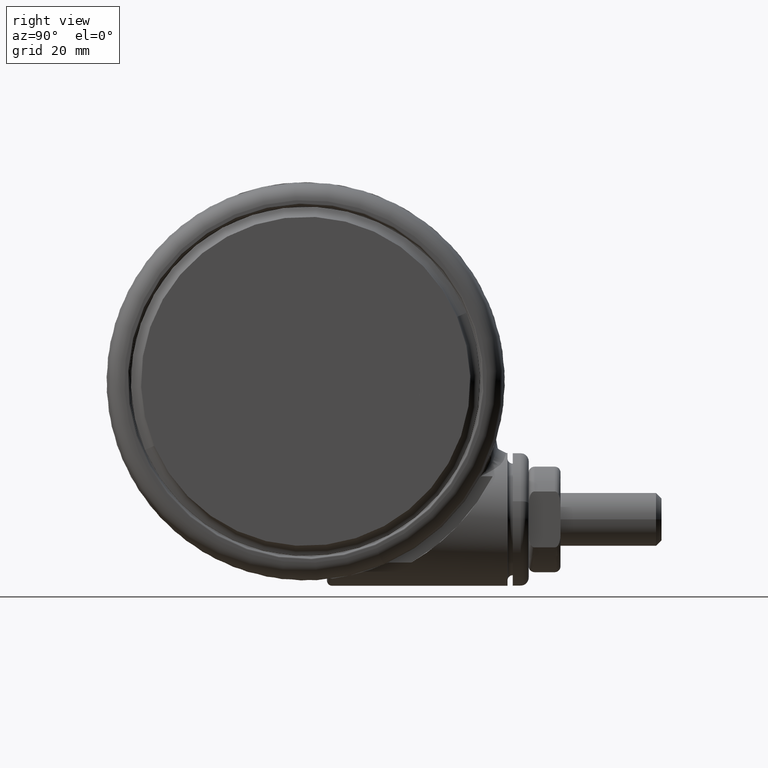
[diagram: clean part render]
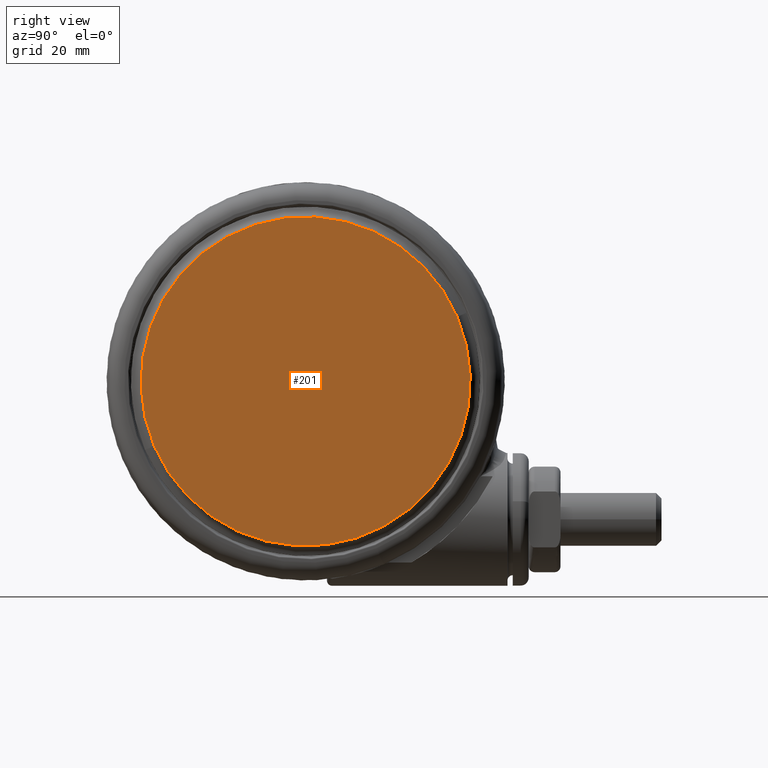
[diagram: same view with one face highlighted and labeled with its STEP entity id]
A machine part, right view. The second image highlights one B-rep face of the part: STEP entity #201.
In plain terms, the highlighted planar face has unit normal (-1, 0, 0).
Its self-contained STEP definition (entity closure, byte-faithful):
#201 = ADVANCED_FACE ( 'NONE', ( #32467 ), #52228, .F. ) ;
#1480 = CIRCLE ( 'NONE', #42390, 31.00000000000000000 ) ;
#2048 = EDGE_CURVE ( 'NONE', #19672, #41704, #1480, .T. ) ;
#10494 = EDGE_CURVE ( 'NONE', #41704, #19672, #26049, .T. ) ;
#11190 = AXIS2_PLACEMENT_3D ( 'NONE', #49265, #52463, #53049 ) ;
#12112 = ORIENTED_EDGE ( 'NONE', *, *, #2048, .T. ) ;
#12439 = EDGE_LOOP ( 'NONE', ( #12112, #20717 ) ) ;
#19672 = VERTEX_POINT ( 'NONE', #21919 ) ;
#20717 = ORIENTED_EDGE ( 'NONE', *, *, #10494, .T. ) ;
#21919 = CARTESIAN_POINT ( 'NONE',  ( 31.00000000000000000, 0.0000000000000000000, -1.301042606982605300E-015 ) ) ;
#22043 = CARTESIAN_POINT ( 'NONE',  ( 0.0000000000000000000, 0.0000000000000000000, -1.301042606982605300E-015 ) ) ;
#26049 = CIRCLE ( 'NONE', #51027, 31.00000000000000000 ) ;
#26494 = DIRECTION ( 'NONE',  ( 1.000000000000000000, 0.0000000000000000000, 0.0000000000000000000 ) ) ;
#29312 = DIRECTION ( 'NONE',  ( 0.0000000000000000000, 0.0000000000000000000, 1.000000000000000000 ) ) ;
#29324 = DIRECTION ( 'NONE',  ( 1.000000000000000000, 0.0000000000000000000, 0.0000000000000000000 ) ) ;
#29370 = CARTESIAN_POINT ( 'NONE',  ( 0.0000000000000000000, 0.0000000000000000000, -1.301042606982605300E-015 ) ) ;
#32467 = FACE_OUTER_BOUND ( 'NONE', #12439, .T. ) ;
#39563 = CARTESIAN_POINT ( 'NONE',  ( -31.00000000000000000, 3.907598370292685700E-015, -1.301042606982605300E-015 ) ) ;
#41704 = VERTEX_POINT ( 'NONE', #39563 ) ;
#42390 = AXIS2_PLACEMENT_3D ( 'NONE', #29370, #29312, #29324 ) ;
#49265 = CARTESIAN_POINT ( 'NONE',  ( 0.0000000000000000000, 31.00000000000000000, -1.301042606982605300E-015 ) ) ;
#51027 = AXIS2_PLACEMENT_3D ( 'NONE', #22043, #53321, #26494 ) ;
#52228 = PLANE ( 'NONE',  #11190 ) ;
#52463 = DIRECTION ( 'NONE',  ( 0.0000000000000000000, 0.0000000000000000000, -1.000000000000000000 ) ) ;
#53049 = DIRECTION ( 'NONE',  ( -1.000000000000000000, 0.0000000000000000000, 0.0000000000000000000 ) ) ;
#53321 = DIRECTION ( 'NONE',  ( 0.0000000000000000000, 0.0000000000000000000, 1.000000000000000000 ) ) ;